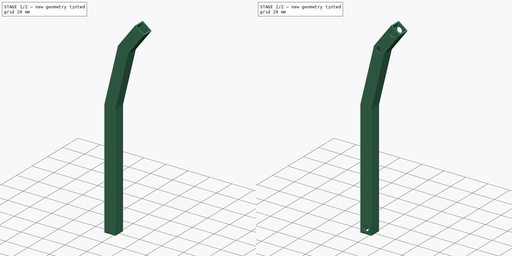
[diagram: build sequence overview — one tinted view per stage of 2, left to right]
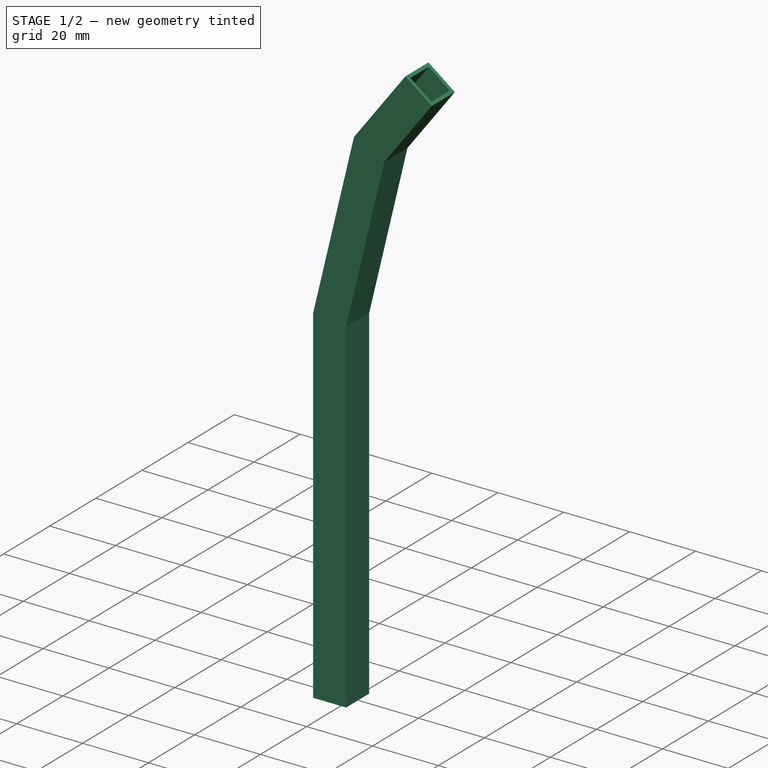
[diagram: stage 1 of 2 — iso view after this stage's code; geometry added in this stage tinted green]
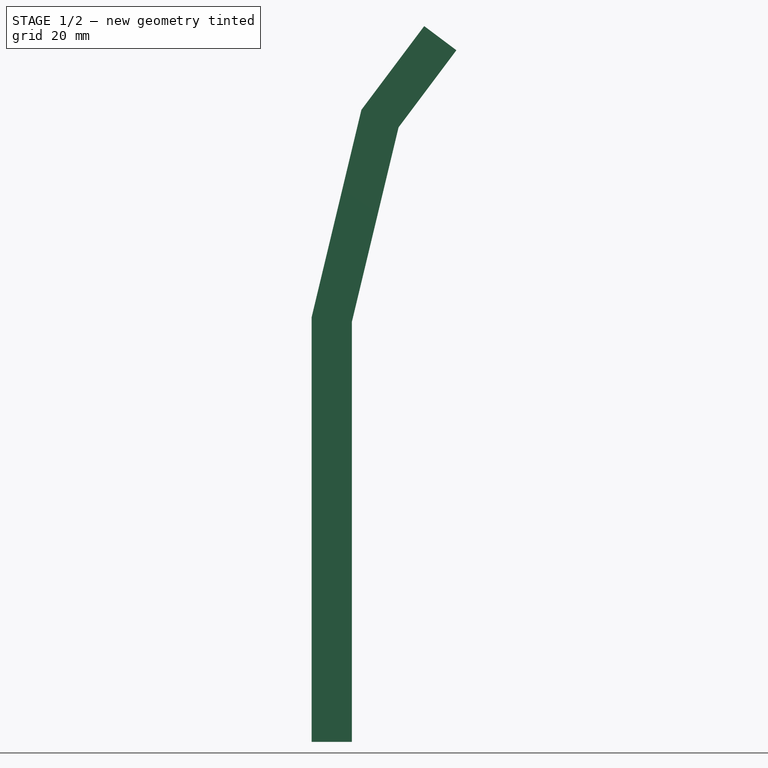
[diagram: stage 1 of 2 — front view after this stage's code; geometry added in this stage tinted green]
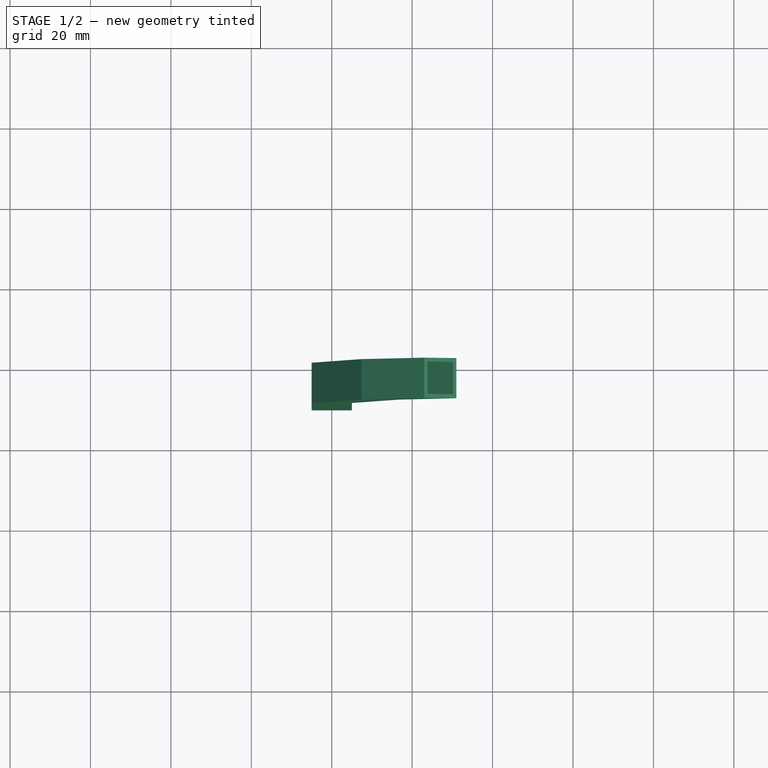
[diagram: stage 1 of 2 — top view after this stage's code; geometry added in this stage tinted green]
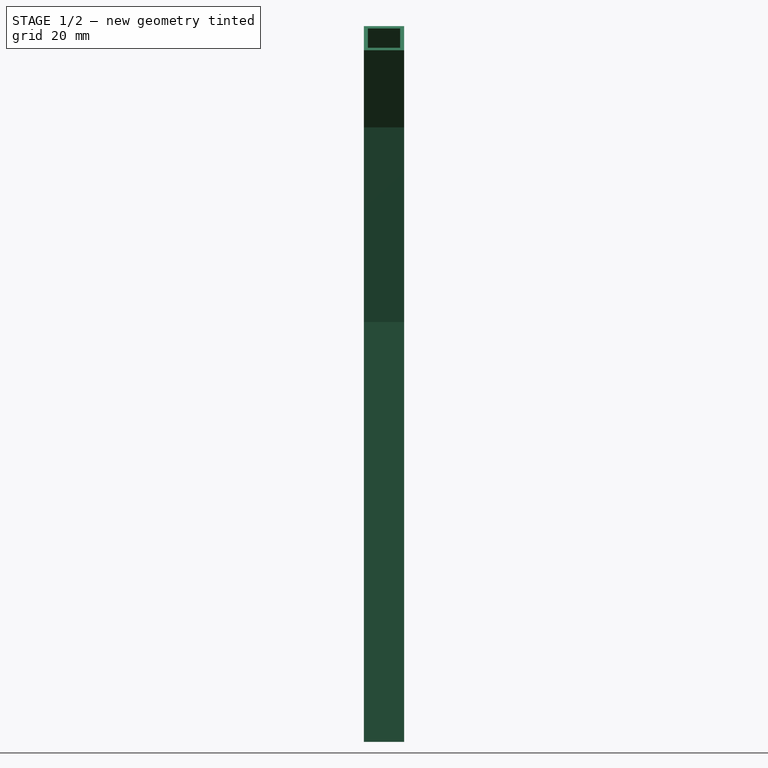
[diagram: stage 1 of 2 — right view after this stage's code; geometry added in this stage tinted green]
FCSTD DOCUMENT  (FreeCAD 0.18R)
Label: fibula
License: All rights reserved
LicenseURL: http://en.wikipedia.org/wiki/All_rights_reserved
objects: Sketcher::SketchObject×2, PartDesign::Pad×1, PartDesign::Thickness×1, PartDesign::Pocket×1, PartDesign::Body×1
note: 8 computed .brp shape members not serialized (recipe doc carries the construction recipe); baked Part::Feature solids carry a one-line shape summary decoded from their .brp

FEATURE [Sketcher::SketchObject] Sketch
  MapMode = 5
  Placement = pos=(0,0,0) rot=(1,0,0;1.5708rad)
  Support = -> [XZ_Plane]
  sketch-geometry (18):
    g0: LineSegment [constr] StartX=0 StartY=0 StartZ=0 EndX=0 EndY=105 EndZ=0
    g1: LineSegment [constr] StartX=0 StartY=105 StartZ=0 EndX=12 EndY=155 EndZ=0
    g2: LineSegment [constr] StartX=12 StartY=155 StartZ=0 EndX=24 EndY=171 EndZ=0
    g3: LineSegment StartX=-5 StartY=0 StartZ=0 EndX=5 EndY=0 EndZ=0
    g4: LineSegment StartX=5 StartY=0 StartZ=0 EndX=5 EndY=104.408 EndZ=0
    g5: LineSegment StartX=5 StartY=104.408 StartZ=0 EndX=16.6206 EndY=152.827 EndZ=0
    g6: LineSegment StartX=16.6206 StartY=152.827 StartZ=0 EndX=31 EndY=172 EndZ=0
    g7: LineSegment StartX=23 StartY=178 StartZ=0 EndX=7.37944 EndY=157.173 EndZ=0
    g8: LineSegment StartX=7.37944 StartY=157.173 StartZ=0 EndX=-5 EndY=105.592 EndZ=0
    g9: LineSegment StartX=-5 StartY=105.592 StartZ=0 EndX=-5 EndY=0 EndZ=0
    g10: LineSegment [constr] StartX=-5 StartY=0 StartZ=0 EndX=0 EndY=0 EndZ=0
    g11: LineSegment [constr] StartX=0 StartY=0 StartZ=0 EndX=5 EndY=0 EndZ=0
    g12: LineSegment [constr] StartX=0 StartY=105 StartZ=0 EndX=4.86194 EndY=103.833 EndZ=0
    g13: LineSegment [constr] StartX=0 StartY=105 StartZ=0 EndX=-4.86194 EndY=106.167 EndZ=0
    g14: LineSegment [constr] StartX=23 StartY=178 StartZ=0 EndX=24 EndY=171 EndZ=0
    g15: LineSegment [constr] StartX=24 StartY=171 StartZ=0 EndX=31 EndY=172 EndZ=0
    g16: LineSegment StartX=31 StartY=172 StartZ=0 EndX=23 EndY=178 EndZ=0
    g17: LineSegment [constr] StartX=27 StartY=175 StartZ=0 EndX=24 EndY=171 EndZ=0
  constraints (50):
    c: Coincident(g0,g-1)
    c: Vertical(g0)
    c: Distance(g0) = 105
    c: Coincident(g1,g0)
    c: Coincident(g2,g1)
    c: DistanceY(g0,g1) = 50
    c: DistanceX(g0,g1) = 12
    c: DistanceX(g1,g2) = 12
    c: DistanceY(g1,g2) = 16
    c: PointOnObject(g3,g-1)
    c: Horizontal(g3)
    c: Coincident(g3,g4)
    c: Vertical(g4)
    c: Coincident(g4,g5)
    c: Coincident(g5,g6)
    c: Coincident(g7,g8)
    c: Coincident(g8,g9)
    c: Coincident(g9,g3)
    c: Vertical(g9)
    c: Coincident(g10,g3)
    c: Coincident(g11,g10)
    c: Coincident(g11,g3)
    c: Equal(g11,g10)
    c: Distance(g3) = 10
    c: Coincident(g10,g-1)
    c: Parallel(g5,g1)
    c: Parallel(g1,g8)
    c: Parallel(g2,g6)
    c: Parallel(g6,g7)
    c: Coincident(g12,g0)
    c: PointOnObject(g12,g5)
    c: Coincident(g13,g0)
    c: PointOnObject(g13,g8)
    c: Perpendicular(g8,g13)
    c: Perpendicular(g5,g12)
    c: Equal(g12,g13)
    c: Distance(g13) = 5
    c: Coincident(g15,g14)
    c: Coincident(g15,g6)
    c: Equal(g15,g14)
    c: Coincident(g14,g2)
    c: Coincident(g7,g14)
    c: Coincident(g16,g6)
    c: Coincident(g16,g7)
    c: Perpendicular(g16,g6)
    c: Distance(g16) = 10
    c: PointOnObject(g17,g16)
    c: Coincident(g17,g2)
    c: Perpendicular(g16,g17)
    c: Distance(g17) = 5
FEATURE [PartDesign::Pad] Pad
  Length = 10
  Length2 = 100
  Placement = pos=(0,0,0) rot=(1,0,0;1.5708rad)
  Profile = -> Sketch
  Type = 0
FEATURE [PartDesign::Thickness] Thickness
  Base = -> Pad [Face5,Face1]
  BaseFeature = -> Pad
  Join = 0
  Mode = 0
  Reversed = true
  Value = 1
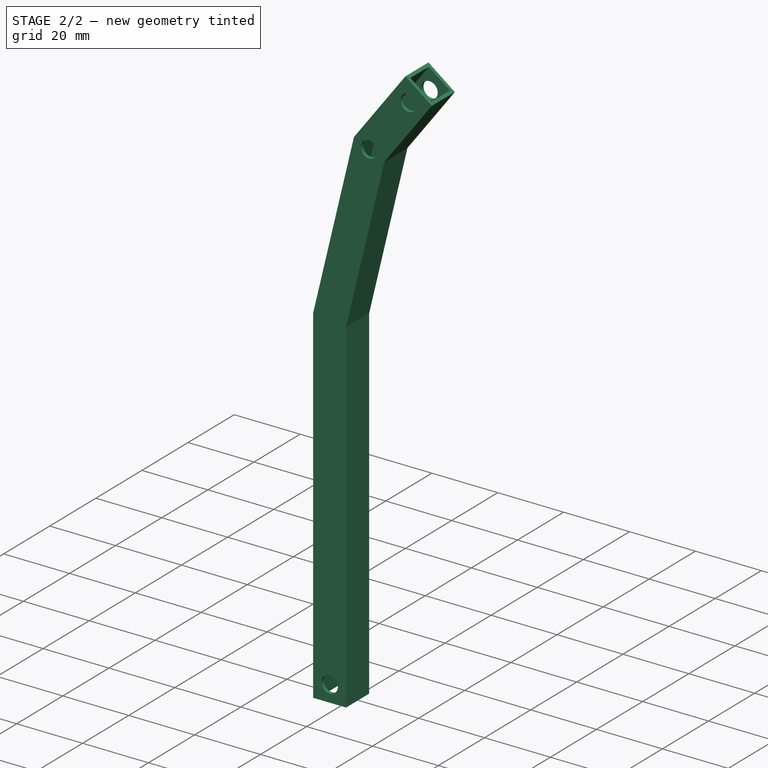
[diagram: stage 2 of 2 — iso view after this stage's code; geometry added in this stage tinted green]
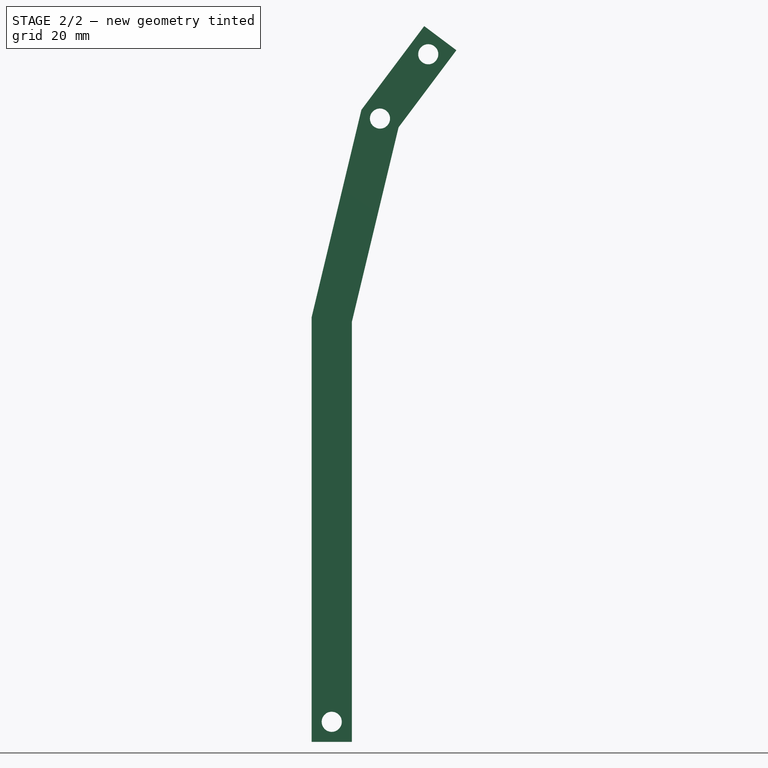
[diagram: stage 2 of 2 — front view after this stage's code; geometry added in this stage tinted green]
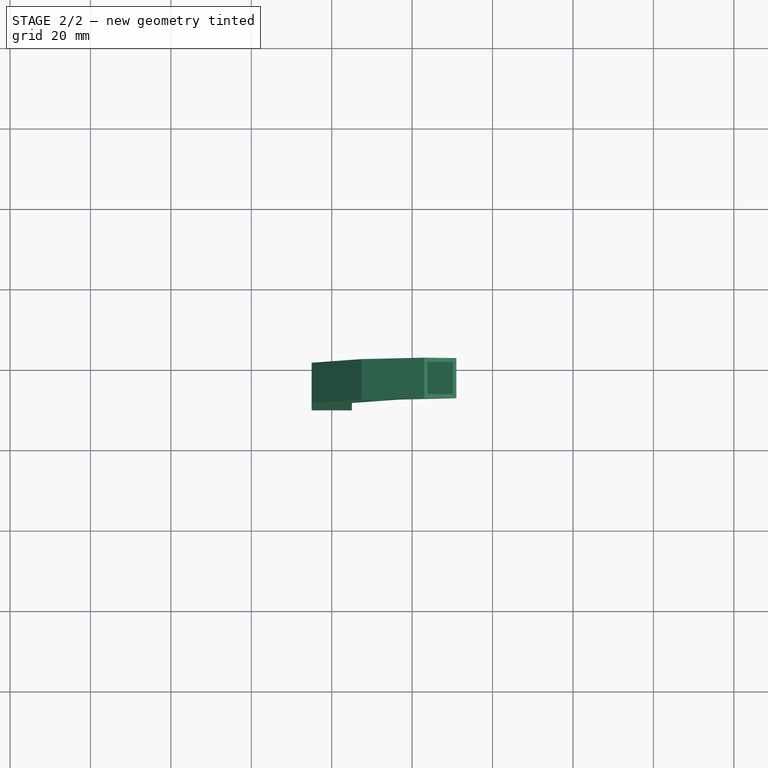
[diagram: stage 2 of 2 — top view after this stage's code; geometry added in this stage tinted green]
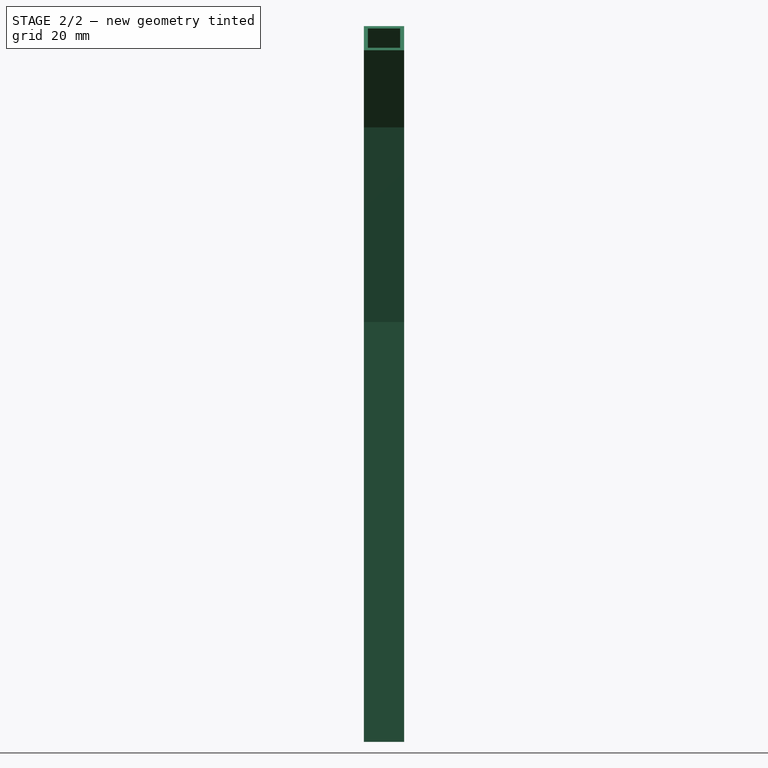
[diagram: stage 2 of 2 — right view after this stage's code; geometry added in this stage tinted green]
FEATURE [Sketcher::SketchObject] Sketch001
  ExternalGeometry = -> [Thickness]
  MapMode = 5
  Placement = pos=(0,-10,6.7e-15) rot=(1,0,0;1.5708rad)
  Support = -> [Thickness]
  sketch-geometry (9):
    g0: Circle CenterX=0 CenterY=5 CenterZ=0 NormalX=0 NormalY=0 NormalZ=1 AngleXU=0 Radius=2.5
    g1: GeomPoint X=0 Y=105 Z=0
    g2: Circle CenterX=12 CenterY=155 CenterZ=0 NormalX=0 NormalY=0 NormalZ=1 AngleXU=0 Radius=2.5
    g3: Circle CenterX=24 CenterY=171 CenterZ=0 NormalX=0 NormalY=0 NormalZ=1 AngleXU=0 Radius=2.5
    g4: LineSegment [constr] StartX=23 StartY=178 StartZ=0 EndX=24 EndY=171 EndZ=0
    g5: LineSegment [constr] StartX=24 StartY=171 StartZ=0 EndX=31 EndY=172 EndZ=0
    g6: LineSegment [constr] StartX=27 StartY=175 StartZ=0 EndX=24 EndY=171 EndZ=0
    g7: LineSegment [constr] StartX=24 StartY=171 StartZ=0 EndX=12 EndY=155 EndZ=0
    g8: LineSegment [constr] StartX=12 StartY=155 StartZ=0 EndX=0 EndY=105 EndZ=0
  constraints (22):
    c: PointOnObject(g0,g-2)
    c: Radius(g0) = 2.5
    c: DistanceY(g-1,g0) = 5
    c: PointOnObject(g1,g-2)
    c: DistanceY(g0,g1) = 100
    c: Coincident(g4,g-3)
    c: Coincident(g4,g3)
    c: Coincident(g5,g3)
    c: Coincident(g5,g-5)
    c: PointOnObject(g6,g-3)
    c: Coincident(g6,g3)
    c: Equal(g5,g4)
    c: Distance(g6) = 5
    c: Perpendicular(g-3,g6)
    c: Equal(g3,g2)
    c: Equal(g2,g0)
    c: Coincident(g7,g3)
    c: Coincident(g7,g2)
    c: Coincident(g8,g2)
    c: Coincident(g8,g1)
    c: Parallel(g8,g-4)
    c: Parallel(g-5,g7)
FEATURE [PartDesign::Pocket] Pocket
  BaseFeature = -> Thickness
  Length = 5
  Length2 = 100
  Profile = -> Sketch001
  Type = 1
FEATURE [PartDesign::Body] Body
  Group = -> [Sketch,Pad,Thickness,Sketch001,Pocket]
  Origin = -> Origin
  Tip = -> Pocket
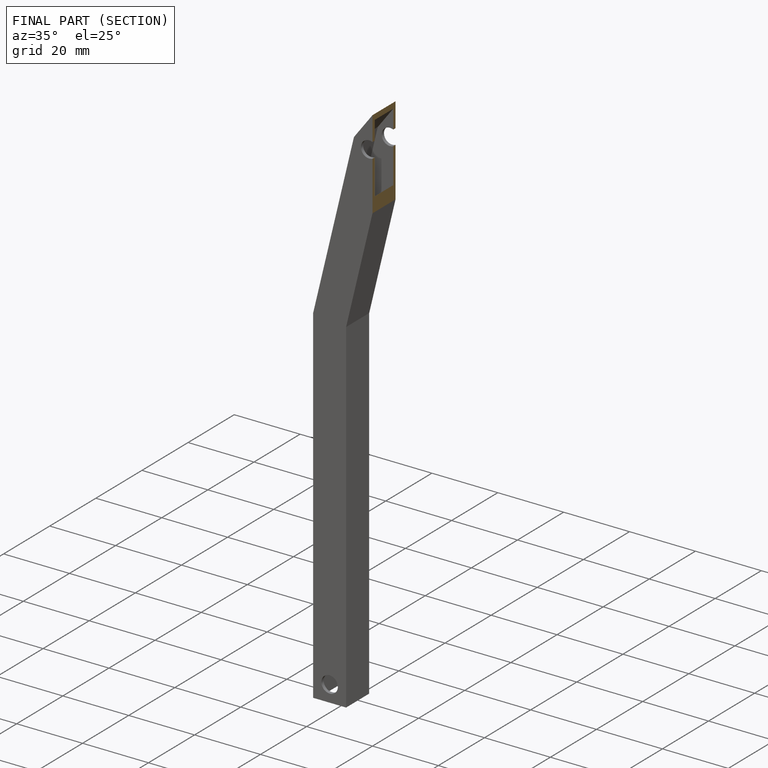
[diagram: finished part — half-section view (interior)]
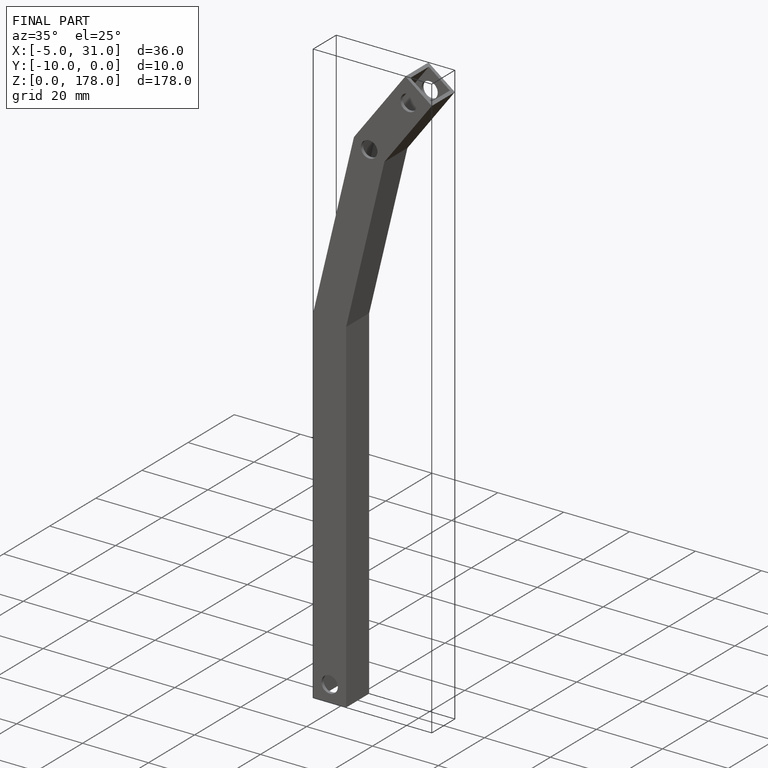
[diagram: finished part — iso view with bounding-box wireframe]
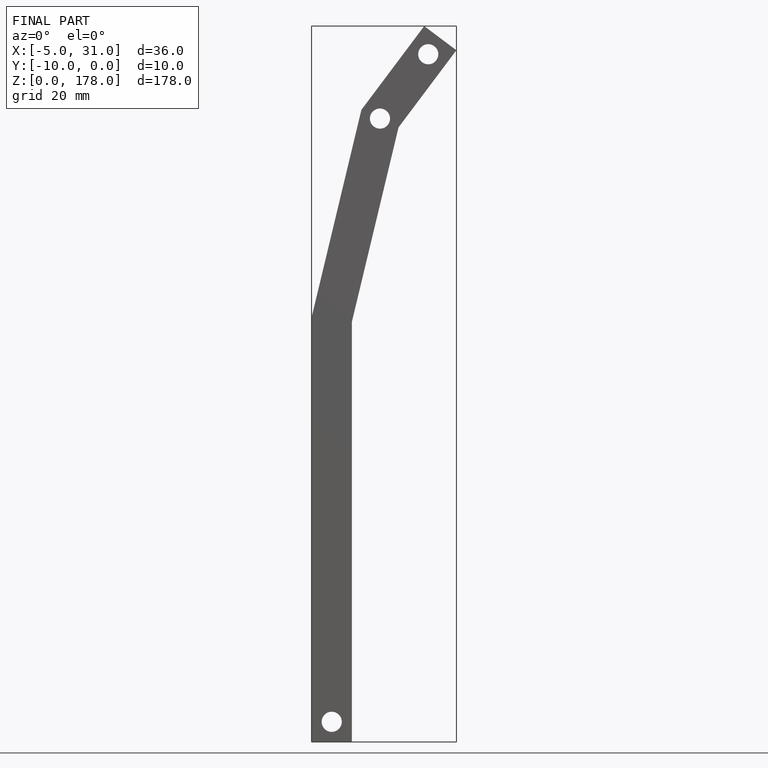
[diagram: finished part — front view with bounding-box wireframe]
